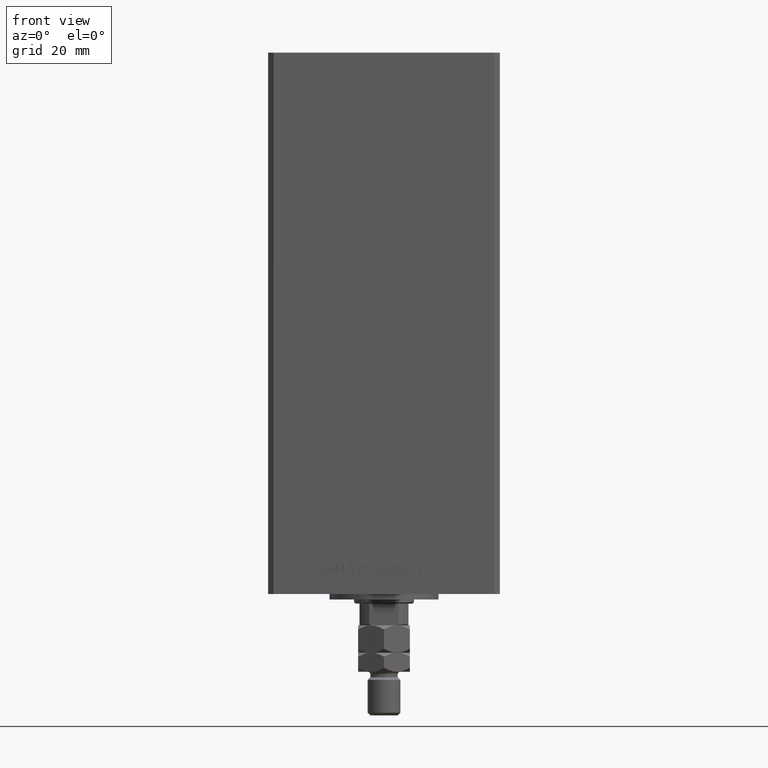
[diagram: clean part render]
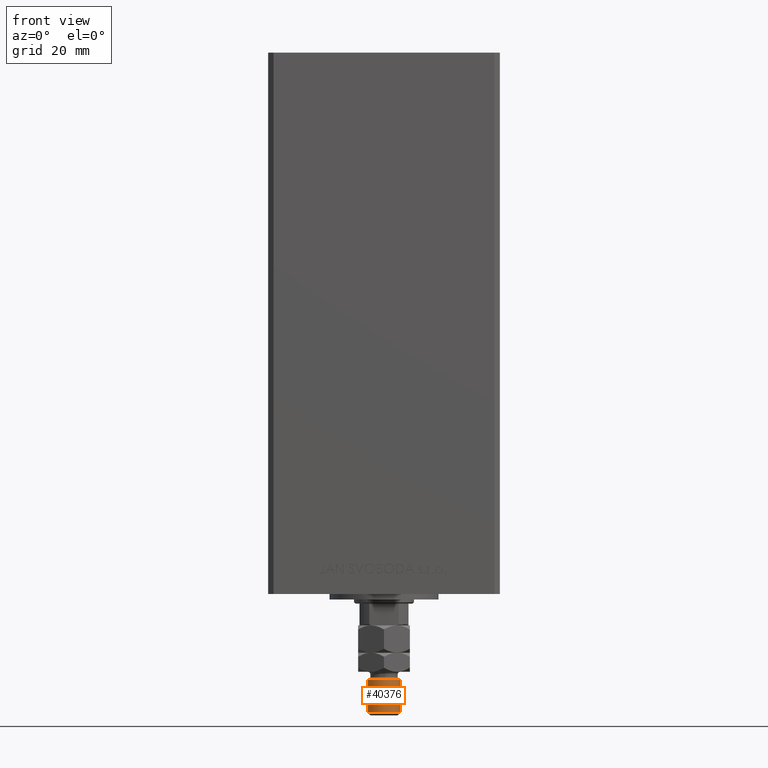
[diagram: same view with one face highlighted and labeled with its STEP entity id]
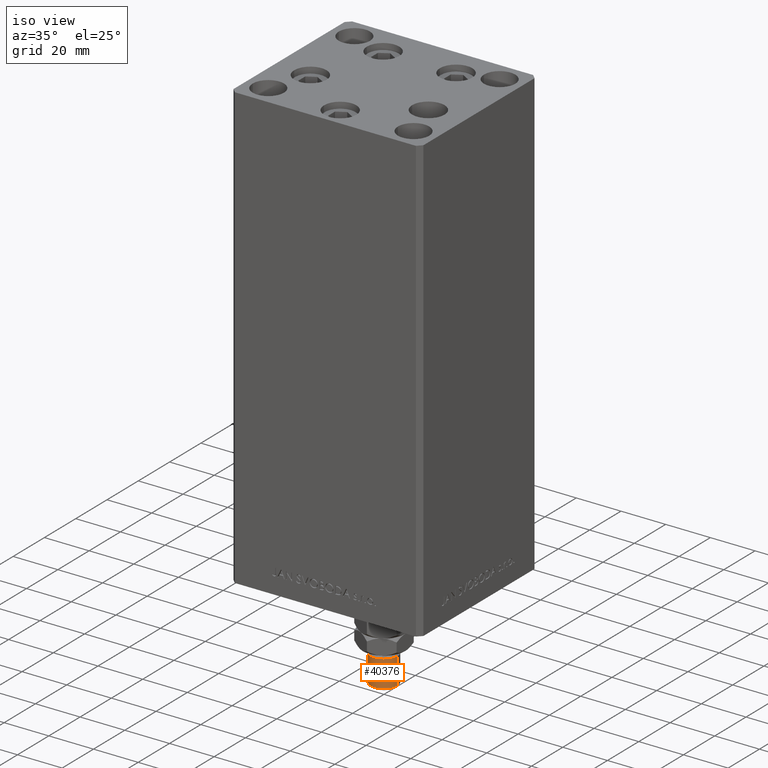
[diagram: same view with one face highlighted and labeled with its STEP entity id]
A machine part, front view. The second image highlights one B-rep face of the part: STEP entity #40376.
A second angle (iso view) of the same face is appended — the face is thin or edge-on in the first view.
In plain terms, the highlighted cylindrical surface (edge-blend (fillet) strip) has radius 6 mm, axis along (0, -0, 1).
Its self-contained STEP definition (entity closure, byte-faithful):
#984 = VECTOR ( 'NONE', #28985, 1000.000000000000000 ) ;
#1112 = DIRECTION ( 'NONE',  ( 1.000000000000000000, 0.000000000000000000, 0.000000000000000000 ) ) ;
#1853 = AXIS2_PLACEMENT_3D ( 'NONE', #46867, #11867, #1112 ) ;
#1871 = CARTESIAN_POINT ( 'NONE',  ( 6.000000000000000888, 7.347880794884120722E-16, 20.00000000000000711 ) ) ;
#6185 = DIRECTION ( 'NONE',  ( -1.000000000000000000, 0.000000000000000000, 0.000000000000000000 ) ) ;
#7150 = AXIS2_PLACEMENT_3D ( 'NONE', #36645, #44055, #33326 ) ;
#9278 = EDGE_CURVE ( 'NONE', #11871, #21849, #19803, .T. ) ;
#10280 = FACE_OUTER_BOUND ( 'NONE', #43772, .T. ) ;
#11867 = DIRECTION ( 'NONE',  ( 0.000000000000000000, 0.000000000000000000, -1.000000000000000000 ) ) ;
#11871 = VERTEX_POINT ( 'NONE', #20532 ) ;
#16638 = CARTESIAN_POINT ( 'NONE',  ( 6.000000000000000888, 7.347880794884120722E-16, 33.00000000000000000 ) ) ;
#17484 = LINE ( 'NONE', #47888, #984 ) ;
#18011 = CARTESIAN_POINT ( 'NONE',  ( -6.000000000000000888, 0.000000000000000000, 20.00000000000000711 ) ) ;
#19803 = CIRCLE ( 'NONE', #1853, 6.000000000000000888 ) ;
#20532 = CARTESIAN_POINT ( 'NONE',  ( 6.000000000000000888, 7.347880794884120722E-16, 32.00000000000000000 ) ) ;
#21849 = VERTEX_POINT ( 'NONE', #35721 ) ;
#26126 = EDGE_CURVE ( 'NONE', #21849, #36674, #17484, .T. ) ;
#26352 = CYLINDRICAL_SURFACE ( 'NONE', #46226, 6.000000000000000888 ) ;
#27294 = ORIENTED_EDGE ( 'NONE', *, *, #9278, .T. ) ;
#28302 = VERTEX_POINT ( 'NONE', #1871 ) ;
#28651 = ORIENTED_EDGE ( 'NONE', *, *, #28701, .F. ) ;
#28701 = EDGE_CURVE ( 'NONE', #11871, #28302, #36058, .T. ) ;
#28985 = DIRECTION ( 'NONE',  ( -0.000000000000000000, -0.000000000000000000, -1.000000000000000000 ) ) ;
#29388 = ORIENTED_EDGE ( 'NONE', *, *, #43679, .T. ) ;
#32343 = ORIENTED_EDGE ( 'NONE', *, *, #26126, .T. ) ;
#32918 = VECTOR ( 'NONE', #43476, 1000.000000000000000 ) ;
#33326 = DIRECTION ( 'NONE',  ( 1.000000000000000000, 0.000000000000000000, 0.000000000000000000 ) ) ;
#34915 = CIRCLE ( 'NONE', #7150, 6.000000000000000888 ) ;
#35721 = CARTESIAN_POINT ( 'NONE',  ( -6.000000000000000888, 0.000000000000000000, 32.00000000000000000 ) ) ;
#36058 = LINE ( 'NONE', #16638, #32918 ) ;
#36645 = CARTESIAN_POINT ( 'NONE',  ( 0.000000000000000000, 0.000000000000000000, 20.00000000000000711 ) ) ;
#36674 = VERTEX_POINT ( 'NONE', #18011 ) ;
#40376 = ADVANCED_FACE ( 'NONE', ( #10280 ), #26352, .T. ) ;
#40930 = DIRECTION ( 'NONE',  ( -0.000000000000000000, -0.000000000000000000, -1.000000000000000000 ) ) ;
#41947 = CARTESIAN_POINT ( 'NONE',  ( 0.000000000000000000, 0.000000000000000000, 33.00000000000000000 ) ) ;
#43476 = DIRECTION ( 'NONE',  ( -0.000000000000000000, -0.000000000000000000, -1.000000000000000000 ) ) ;
#43679 = EDGE_CURVE ( 'NONE', #36674, #28302, #34915, .T. ) ;
#43772 = EDGE_LOOP ( 'NONE', ( #28651, #27294, #32343, #29388 ) ) ;
#44055 = DIRECTION ( 'NONE',  ( -0.000000000000000000, -0.000000000000000000, 1.000000000000000000 ) ) ;
#46226 = AXIS2_PLACEMENT_3D ( 'NONE', #41947, #40930, #6185 ) ;
#46867 = CARTESIAN_POINT ( 'NONE',  ( 0.000000000000000000, 0.000000000000000000, 32.00000000000000000 ) ) ;
#47888 = CARTESIAN_POINT ( 'NONE',  ( -6.000000000000000888, 0.000000000000000000, 33.00000000000000000 ) ) ;